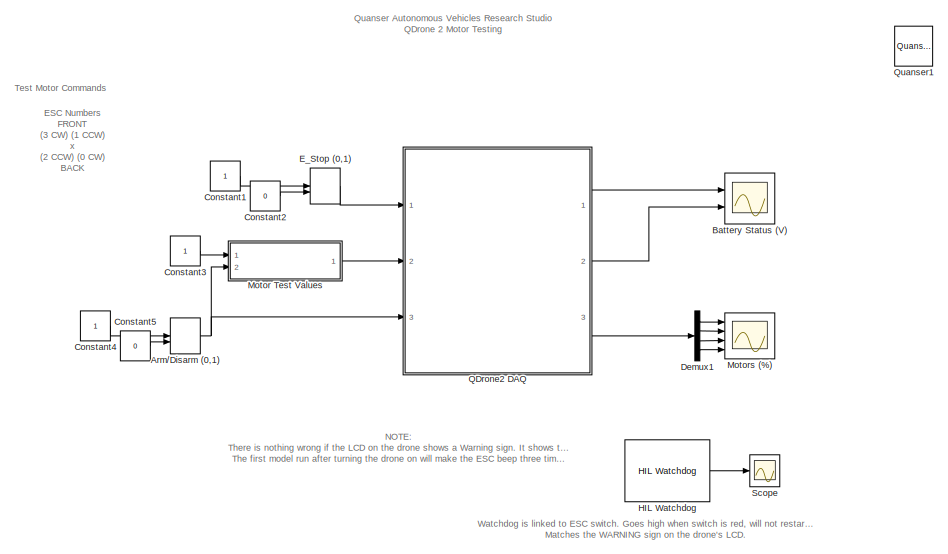
[diagram: root canvas - part 1/2, right side, full height]
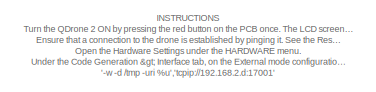
[diagram: root canvas - part 2/2, top left region]
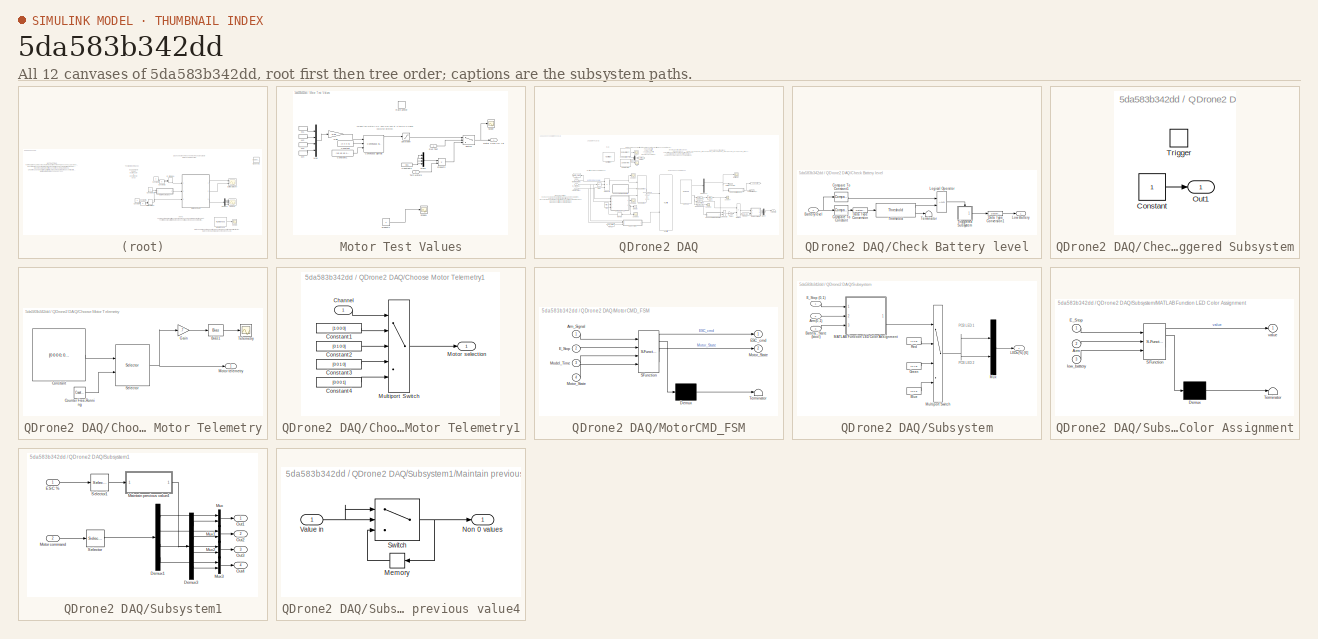
[diagram: thumbnail index - all 12 canvases of the model, root first then tree order]
MODEL slx_5da583b342dd
KIND model
CONFIG AbsTol = auto
CONFIG EnableMultiTasking = on
CONFIG FixedStep = 0.002
CONFIG MaxStep = auto
CONFIG MinStep = auto
CONFIG RelTol = 1e-3
CONFIG SampleTimeConstraint = Unconstrained
CONFIG SolverName = ode2
CONFIG StartTime = 0.0
CONFIG StopTime = inf
BLOCK [ManualSwitch] Arm//Disarm (0,1)
  InitFcn = set_param(gcb,'sw','0')
BLOCK [Scope] Battery Status (V)
  Floating = off
  NumInputPorts = 2
  Ports = [2]
  ScopeSpecificationString = Simulink.scopes.TimeScopeBlockCfg('CurrentConfiguration', extmgr.ConfigurationSet(extmgr.Configuration('Core','General UI',true),extmgr.Configuration('Core','Source UI',true),extmgr.Configuration('Sources','WiredSimulink',true),extmgr.Configuration('Visuals','Time Domain',true,'SerializedDisplays',{struct('MinYLimReal','-1.00000','MaxYLimReal','1.00000','YLabelReal','','MinYLimMag','0.00000','MaxY...<+2019ch>
BLOCK [Constant] Constant1
BLOCK [Constant] Constant2
  Value = 0
BLOCK [Constant] Constant3
BLOCK [Constant] Constant4
BLOCK [Constant] Constant5
  Value = 0
BLOCK [Demux] Demux1
  Ports = [1, 4]
BLOCK [ManualSwitch] E_Stop (0,1)
  CurrentSetting = 0
BLOCK [Reference] HIL Watchdog  REF=quarc_library/Data Acquisition/Generic/Watchdog/HIL Watchdog
  AttributesFormatString = (%<object_name>)
  Ports = [0, 1]
  SourceBlock = quarc_library/Data Acquisition/Generic/Watchdog/HIL Watchdog
  SourceProductName = QUARC Targets
  SourceType = HIL Watchdog
  UserDataPersistent = on
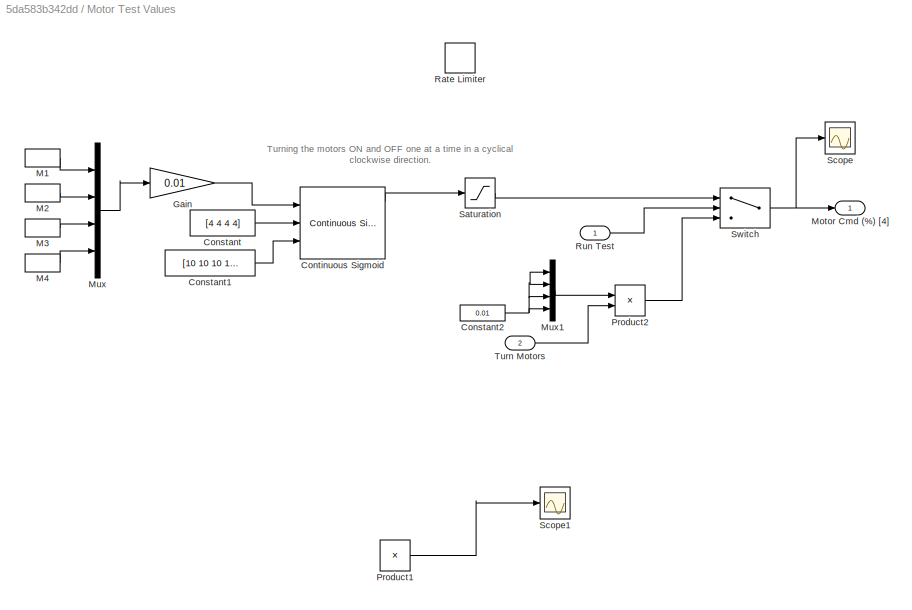
BLOCK [SubSystem] Motor Test Values
  NameLocation = top
  Ports = [2, 1]
BLOCK [Constant] Motor Test Values/Constant
  Value = [4 4 4 4]
BLOCK [Constant] Motor Test Values/Constant1
  Value = [10 10 10 10]
BLOCK [Constant] Motor Test Values/Constant2
  Value = 0.01
BLOCK [Reference] Motor Test Values/Continuous Sigmoid  REF=quarc_library/Sources/Sigmoids/Continuous Sigmoid
  Ports = [3, 4]
  SourceBlock = quarc_library/Sources/Sigmoids/Continuous Sigmoid
  SourceProductName = QUARC Targets
  SourceType = Continuous Sigmoid
BLOCK [Gain] Motor Test Values/Gain
  Gain = 0.01
BLOCK [DiscretePulseGenerator] Motor Test Values/M1
  Period = 8
  Ports = [0, 1]
  PulseType = Time based
  PulseWidth = 12.5
BLOCK [DiscretePulseGenerator] Motor Test Values/M2
  Period = 8
  PhaseDelay = 6
  Ports = [0, 1]
  PulseType = Time based
  PulseWidth = 12.5
BLOCK [DiscretePulseGenerator] Motor Test Values/M3
  Period = 8
  PhaseDelay = 2
  Ports = [0, 1]
  PulseType = Time based
  PulseWidth = 12.5
BLOCK [DiscretePulseGenerator] Motor Test Values/M4
  Period = 8
  PhaseDelay = 4
  Ports = [0, 1]
  PulseType = Time based
  PulseWidth = 12.5
BLOCK [Outport] Motor Test Values/Motor Cmd (%) [4]
  VectorParamsAs1DForOutWhenUnconnected = off
BLOCK [Mux] Motor Test Values/Mux
  DisplayOption = bar
  Ports = [4, 1]
BLOCK [Mux] Motor Test Values/Mux1
  DisplayOption = bar
  Ports = [4, 1]
BLOCK [Product] Motor Test Values/Product1
  Commented = on
  Ports = [2, 1]
BLOCK [Product] Motor Test Values/Product2
  Ports = [2, 1]
BLOCK [RateLimiter] Motor Test Values/Rate Limiter
  Commented = on
  FallingSlewLimit = -0.1
  RisingSlewLimit = 0.1
  SampleTimeMode = inherited
BLOCK [Inport] Motor Test Values/Run Test
BLOCK [Saturate] Motor Test Values/Saturation
  LowerLimit = 0
  UpperLimit = 0.1
BLOCK [Scope] Motor Test Values/Scope
  Floating = off
  NumInputPorts = 1
  Ports = [1]
  ScopeSpecificationString = Simulink.scopes.TimeScopeBlockCfg('CurrentConfiguration', extmgr.ConfigurationSet(extmgr.Configuration('Core','General UI',true),extmgr.Configuration('Core','Source UI',true),extmgr.Configuration('Sources','WiredSimulink',true,'DataLoggingVariableName','ScopeData1'),extmgr.Configuration('Visuals','Time Domain',true,'SerializedDisplays',{struct('MinYLimReal','-0.00125','MaxYLimReal','0.01125','YLab...<+1429ch>
BLOCK [Scope] Motor Test Values/Scope1
  Commented = on
  Floating = off
  NumInputPorts = 1
  Ports = [1]
  ScopeSpecificationString = Simulink.scopes.TimeScopeBlockCfg('CurrentConfiguration', extmgr.ConfigurationSet(extmgr.Configuration('Core','General UI',true),extmgr.Configuration('Core','Source UI',true),extmgr.Configuration('Sources','WiredSimulink',true,'DataLoggingVariableName','ScopeData2'),extmgr.Configuration('Visuals','Time Domain',true,'SerializedDisplays',{struct('MinYLimReal','-0.0025','MaxYLimReal','0.0225','YLabel...<+1454ch>
BLOCK [Switch] Motor Test Values/Switch
  Criteria = u2 > Threshold
  InputSameDT = off
  SaturateOnIntegerOverflow = off
BLOCK [Inport] Motor Test Values/Turn Motors
  Port = 2
BLOCK [Scope] Motors (%)
  Floating = off
  NumInputPorts = 4
  Ports = [4]
  ScopeSpecificationString = Simulink.scopes.TimeScopeBlockCfg('CurrentConfiguration', extmgr.ConfigurationSet(extmgr.Configuration('Core','General UI',true),extmgr.Configuration('Core','Source UI',true),extmgr.Configuration('Sources','WiredSimulink',true,'DataLoggingVariableName','ScopeData2'),extmgr.Configuration('Visuals','Time Domain',true,'SerializedDisplays',{struct('MinYLimReal','-0.01681','MaxYLimReal','0.1513','YLabe...<+3932ch>
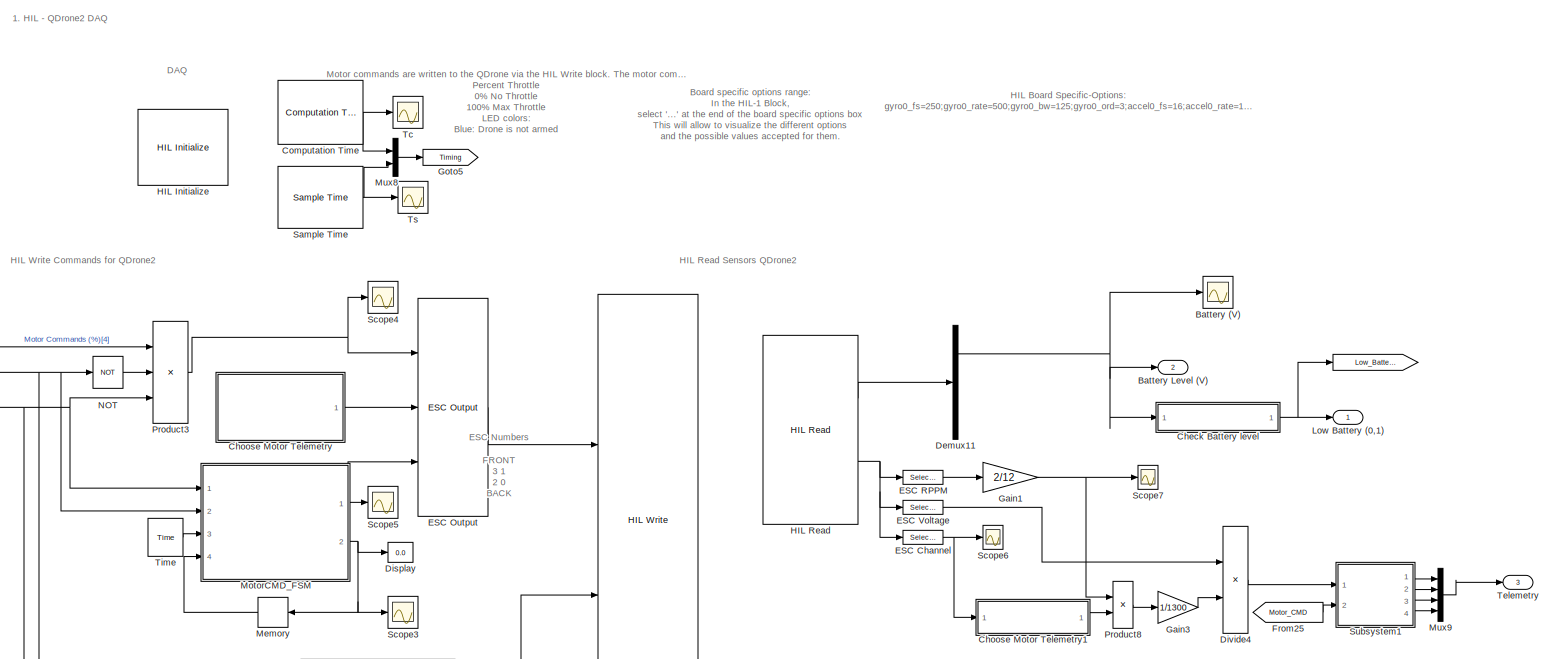
[diagram: QDrone2 DAQ - part 1/2, most of the canvas]
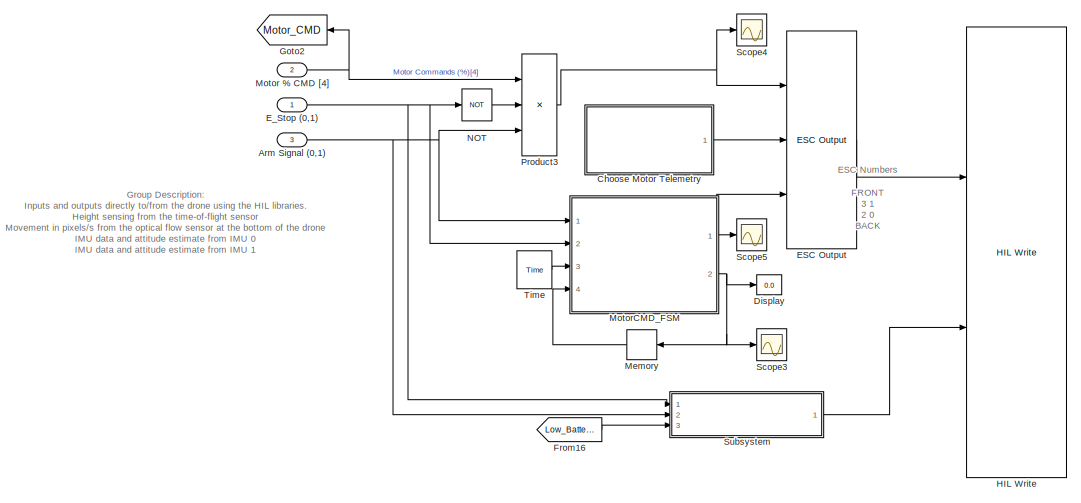
[diagram: QDrone2 DAQ - part 2/2, bottom left region]
BLOCK [SubSystem] QDrone2 DAQ
  Ports = [3, 3]
BLOCK [Goto] QDrone2 DAQ/ 
  GotoTag = Low_Battery
BLOCK [Inport] QDrone2 DAQ/Arm Signal (0,1)
  Port = 3
BLOCK [Scope] QDrone2 DAQ/Battery (V)
  Floating = off
  NumInputPorts = 1
  Ports = [1]
  ScopeSpecificationString = Simulink.scopes.TimeScopeBlockCfg('CurrentConfiguration', extmgr.ConfigurationSet(extmgr.Configuration('Core','General UI',true),extmgr.Configuration('Core','Source UI',true),extmgr.Configuration('Sources','WiredSimulink',true,'DataLoggingVariableName','ScopeData1'),extmgr.Configuration('Visuals','Time Domain',true,'SerializedDisplays',{struct('MinYLimReal','13.04642','MaxYLimReal','18.70722','YLa...<+1438ch>
BLOCK [Outport] QDrone2 DAQ/Battery Level (V)
  Port = 2
BLOCK [SubSystem] QDrone2 DAQ/Check Battery level
  Ports = [1, 1]
BLOCK [Inport] QDrone2 DAQ/Check Battery level/Battery level
BLOCK [Reference] QDrone2 DAQ/Check Battery level/Compare To Constant  REF=simulink/Logic and Bit
Operations/Compare
To Constant
  Ports = [1, 1]
  SourceBlock = simulink/Logic and Bit\nOperations/Compare\nTo Constant
  SourceType = Compare To Constant
BLOCK [Reference] QDrone2 DAQ/Check Battery level/Compare To Constant1  REF=simulink/Logic and Bit
Operations/Compare
To Constant
  Ports = [1, 1]
  SourceBlock = simulink/Logic and Bit\nOperations/Compare\nTo Constant
  SourceType = Compare To Constant
BLOCK [DataTypeConversion] QDrone2 DAQ/Check Battery level/Data Type Conversion
  RndMeth = Floor
  SaturateOnIntegerOverflow = off
BLOCK [DataTypeConversion] QDrone2 DAQ/Check Battery level/Data Type Conversion1
  RndMeth = Floor
  SaturateOnIntegerOverflow = off
BLOCK [Logic] QDrone2 DAQ/Check Battery level/Logical Operator
  AllPortsSameDT = off
  OutDataTypeStr = boolean
  Ports = [2, 1]
BLOCK [Outport] QDrone2 DAQ/Check Battery level/Low Battery
  VectorParamsAs1DForOutWhenUnconnected = off
BLOCK [Terminator] QDrone2 DAQ/Check Battery level/Terminator
BLOCK [Reference] QDrone2 DAQ/Check Battery level/Threshold  REF=quarc_library/Discontinuities/Threshold
  Ports = [1, 2]
  SourceBlock = quarc_library/Discontinuities/Threshold
  SourceProductName = QUARC Targets
  SourceType = Threshold
BLOCK [SubSystem] QDrone2 DAQ/Check Battery level/Triggered Subsystem
  Ports = [0, 1, 0, 1]
  TreatAsAtomicUnit = on
BLOCK [Constant] QDrone2 DAQ/Check Battery level/Triggered Subsystem/Constant
BLOCK [Outport] QDrone2 DAQ/Check Battery level/Triggered Subsystem/Out1
  InitialOutput = [0]
BLOCK [TriggerPort] QDrone2 DAQ/Check Battery level/Triggered Subsystem/Trigger
  Ports = []
  StatesWhenEnabling = held
  VariantControl = (inherit)
BLOCK [SubSystem] QDrone2 DAQ/Choose Motor Telemetry
  Ports = [0, 1]
BLOCK [Bias] QDrone2 DAQ/Choose Motor Telemetry/Bias1
  Bias = 0:3
  SaturateOnIntegerOverflow = off
BLOCK [Constant] QDrone2 DAQ/Choose Motor Telemetry/Constant
  Value = [0 0 0 0; 0 0 0 1; 0 0 0 0; 0 0 1 0; 0 0 0 0; 0 1 0 0; 0 0 0 0; 1 0 0 0]
BLOCK [Reference] QDrone2 DAQ/Choose Motor Telemetry/Counter Free-Running  REF=simulink/Sources/Counter
Free-Running
  Ports = [0, 1]
  SourceBlock = simulink/Sources/Counter\nFree-Running
  SourceType = Counter Free-Running
BLOCK [Gain] QDrone2 DAQ/Choose Motor Telemetry/Gain
  Gain = .7
BLOCK [Outport] QDrone2 DAQ/Choose Motor Telemetry/Motor telemetry
BLOCK [Selector] QDrone2 DAQ/Choose Motor Telemetry/Selector
  IndexMode = Zero-based
  IndexOptions = Index vector (port),Select all
  Indices = [1 3],1
  InputPortWidth = 3
  NumberOfDimensions = 2
  OutputSizes = 1,1
  Ports = [2, 1]
BLOCK [Scope] QDrone2 DAQ/Choose Motor Telemetry/Telemetry
  Floating = off
  NumInputPorts = 1
  Ports = [1]
  ScopeSpecificationString = Simulink.scopes.TimeScopeBlockCfg('CurrentConfiguration', extmgr.ConfigurationSet(extmgr.Configuration('Core','General UI',true),extmgr.Configuration('Core','Source UI',true),extmgr.Configuration('Sources','WiredSimulink',true,'DataLoggingVariableName','ScopeData2'),extmgr.Configuration('Visuals','Time Domain',true,'SerializedDisplays',{struct('MinYLimReal','-0.4625','MaxYLimReal','4.1625','YLabel...<+1629ch>
BLOCK [SubSystem] QDrone2 DAQ/Choose Motor Telemetry1
  Ports = [1, 1]
BLOCK [Inport] QDrone2 DAQ/Choose Motor Telemetry1/Channel
BLOCK [Constant] QDrone2 DAQ/Choose Motor Telemetry1/Constant1
  Value = [1 0 0 0]
BLOCK [Constant] QDrone2 DAQ/Choose Motor Telemetry1/Constant2
  Value = [0 1 0 0]
BLOCK [Constant] QDrone2 DAQ/Choose Motor Telemetry1/Constant3
  Value = [0 0 1 0]
BLOCK [Constant] QDrone2 DAQ/Choose Motor Telemetry1/Constant4
  Value = [0 0 0 1]
BLOCK [Outport] QDrone2 DAQ/Choose Motor Telemetry1/Motor selection
BLOCK [MultiPortSwitch] QDrone2 DAQ/Choose Motor Telemetry1/Multiport Switch
  DataPortOrder = Zero-based contiguous
  InputSameDT = off
  Inputs = 4
  Ports = [5, 1]
  SaturateOnIntegerOverflow = off
  zeroidx = on
BLOCK [Reference] QDrone2 DAQ/Computation Time  REF=quarc_library/Sources/Time/Computation Time
  Ports = [0, 1]
  SourceBlock = quarc_library/Sources/Time/Computation Time
  SourceProductName = QUARC Targets
  SourceType = Computation Time
BLOCK [Demux] QDrone2 DAQ/Demux11
  Outputs = 3
  Ports = [1, 3]
BLOCK [Display] QDrone2 DAQ/Display
  Decimation = 1
  Ports = [1]
BLOCK [Product] QDrone2 DAQ/Divide4
  Inputs = /*
  Ports = [2, 1]
BLOCK [Selector] QDrone2 DAQ/ESC Channel
  IndexOptions = Index vector (dialog)
  Indices = [22]
  InputPortWidth = 22
  OutputSizes = 1
  Ports = [1, 1]
BLOCK [Reference] QDrone2 DAQ/ESC Output  REF=quarc_library/Data Acquisition/Generic/Transformations/ESC Output
  AttributesFormatString = %<protocol>
  Ports = [3, 1]
  SourceBlock = quarc_library/Data Acquisition/Generic/Transformations/ESC Output
  SourceProductName = QUARC Targets
  SourceType = ESC Output
  UserDataPersistent = on
BLOCK [Selector] QDrone2 DAQ/ESC RPPM
  IndexOptions = Index vector (dialog)
  Indices = [20]
  InputPortWidth = 22
  OutputSizes = 1
  Ports = [1, 1]
BLOCK [Selector] QDrone2 DAQ/ESC Voltage
  IndexOptions = Index vector (dialog)
  Indices = [21]
  InputPortWidth = 22
  OutputSizes = 1
  Ports = [1, 1]
BLOCK [Inport] QDrone2 DAQ/E_Stop (0,1)
BLOCK [From] QDrone2 DAQ/From16
  GotoTag = Low_Battery
BLOCK [From] QDrone2 DAQ/From25
  GotoTag = Motor_CMD
BLOCK [Gain] QDrone2 DAQ/Gain1
  Gain = 2/12
BLOCK [Gain] QDrone2 DAQ/Gain3
  Gain = 1/1300
BLOCK [Goto] QDrone2 DAQ/Goto2
  GotoTag = Motor_CMD
  NameLocation = top
BLOCK [Goto] QDrone2 DAQ/Goto5
  GotoTag = Timing
BLOCK [Reference] QDrone2 DAQ/HIL Initialize  REF=quarc_library/Data Acquisition/Generic/Configuration/HIL Initialize
  AttributesFormatString = %<object_name> (%<board_type>-%<board_number>)
  Ports = []
  SourceBlock = quarc_library/Data Acquisition/Generic/Configuration/HIL Initialize
  SourceProductName = QUARC Targets
  SourceType = HIL Initialize
  UserDataPersistent = on
BLOCK [Reference] QDrone2 DAQ/HIL Read  REF=quarc_library/Data Acquisition/Generic/Immediate I//O/HIL Read
  AttributesFormatString = (%<object_name>)
  Ports = [0, 2]
  SourceBlock = quarc_library/Data Acquisition/Generic/Immediate I//O/HIL Read
  SourceProductName = QUARC Targets
  SourceType = HIL Read
  UserDataPersistent = on
BLOCK [Reference] QDrone2 DAQ/HIL Write  REF=quarc_library/Data Acquisition/Generic/Immediate I//O/HIL Write
  AttributesFormatString = (%<object_name>)
  Ports = [2]
  SourceBlock = quarc_library/Data Acquisition/Generic/Immediate I//O/HIL Write
  SourceProductName = QUARC Targets
  SourceType = HIL Write
  UserDataPersistent = on
BLOCK [Outport] QDrone2 DAQ/Low Battery (0,1)
BLOCK [Memory] QDrone2 DAQ/Memory
  NameLocation = top
BLOCK [Inport] QDrone2 DAQ/Motor % CMD [4]
  Port = 2
BLOCK [SubSystem] QDrone2 DAQ/MotorCMD_FSM
  ErrorFcn = Stateflow.Translate.translate
  PermitHierarchicalResolution = ExplicitOnly
  Ports = [4, 2]
  SFBlockType = MATLAB Function
  TreatAsAtomicUnit = on
BLOCK [Demux] QDrone2 DAQ/MotorCMD_FSM/ Demux 
  Outputs = 1
  Ports = [1, 1]
BLOCK [S-Function] QDrone2 DAQ/MotorCMD_FSM/ SFunction 
  EnableBusSupport = on
  FunctionName = sf_sfun
  PortCounts = [4 3]
  Ports = [4, 3]
  SFcnIsStateOwnerBlock = off
  SFunctionDeploymentMode = off
  Tag = Stateflow S-Function 4
BLOCK [Terminator] QDrone2 DAQ/MotorCMD_FSM/ Terminator 
BLOCK [Inport] QDrone2 DAQ/MotorCMD_FSM/Arm_Signal
BLOCK [Outport] QDrone2 DAQ/MotorCMD_FSM/ESC_cmd
BLOCK [Inport] QDrone2 DAQ/MotorCMD_FSM/E_Stop
  Port = 2
BLOCK [Inport] QDrone2 DAQ/MotorCMD_FSM/Model_Time
  Port = 3
BLOCK [Outport] QDrone2 DAQ/MotorCMD_FSM/Motor_State
  Port = 2
BLOCK [Inport] QDrone2 DAQ/MotorCMD_FSM/Motor_State 
  Port = 4
BLOCK [Mux] QDrone2 DAQ/Mux8
  DisplayOption = bar
  Inputs = 2
  Ports = [2, 1]
BLOCK [Mux] QDrone2 DAQ/Mux9
  DisplayOption = bar
  Ports = [4, 1]
BLOCK [Logic] QDrone2 DAQ/NOT
  AllPortsSameDT = off
  IconShape = distinctive
  Operator = NOT
  OutDataTypeStr = boolean
  Ports = [1, 1]
BLOCK [Product] QDrone2 DAQ/Product3
  Inputs = 3
  Ports = [3, 1]
BLOCK [Product] QDrone2 DAQ/Product8
  Ports = [2, 1]
BLOCK [Reference] QDrone2 DAQ/Sample Time  REF=quarc_library/Sources/Time/Sample Time
  Ports = [0, 1]
  Priority = -99
  SourceBlock = quarc_library/Sources/Time/Sample Time
  SourceProductName = QUARC Targets
  SourceType = Sample Time
BLOCK [Scope] QDrone2 DAQ/Scope3
  Floating = off
  NumInputPorts = 1
  Ports = [1]
  ScopeSpecificationString = Simulink.scopes.TimeScopeBlockCfg('CurrentConfiguration', extmgr.ConfigurationSet(extmgr.Configuration('Core','General UI',true),extmgr.Configuration('Core','Source UI',true),extmgr.Configuration('Sources','WiredSimulink',true,'DataLoggingVariableName','ScopeData1'),extmgr.Configuration('Visuals','Time Domain',true,'SerializedDisplays',{struct('MinYLimReal','-0.25','MaxYLimReal','2.25','YLabelReal...<+1420ch>
BLOCK [Scope] QDrone2 DAQ/Scope4
  Floating = off
  NumInputPorts = 1
  Ports = [1]
  ScopeSpecificationString = Simulink.scopes.TimeScopeBlockCfg('CurrentConfiguration', extmgr.ConfigurationSet(extmgr.Configuration('Core','General UI',true),extmgr.Configuration('Core','Source UI',true),extmgr.Configuration('Sources','WiredSimulink',true,'DataLoggingVariableName','ScopeData1'),extmgr.Configuration('Visuals','Time Domain',true,'SerializedDisplays',{struct('MinYLimReal','-0.005','MaxYLimReal','0.045','YLabelRe...<+1510ch>
BLOCK [Scope] QDrone2 DAQ/Scope5
  Floating = off
  NumInputPorts = 1
  Ports = [1]
  ScopeSpecificationString = Simulink.scopes.TimeScopeBlockCfg('CurrentConfiguration', extmgr.ConfigurationSet(extmgr.Configuration('Core','General UI',true),extmgr.Configuration('Core','Source UI',true),extmgr.Configuration('Sources','WiredSimulink',true,'DataLoggingVariableName','ScopeData2'),extmgr.Configuration('Visuals','Time Domain',true,'SerializedDisplays',{struct('MinYLimReal','-2.625','MaxYLimReal','23.625','YLabelR...<+1512ch>
BLOCK [Scope] QDrone2 DAQ/Scope6
  Floating = off
  NumInputPorts = 1
  Ports = [1]
  ScopeSpecificationString = Simulink.scopes.TimeScopeBlockCfg('CurrentConfiguration', extmgr.ConfigurationSet(extmgr.Configuration('Core','General UI',true),extmgr.Configuration('Core','Source UI',true),extmgr.Configuration('Sources','WiredSimulink',true,'DataLoggingVariableName','ScopeData2'),extmgr.Configuration('Visuals','Time Domain',true,'SerializedDisplays',{struct('MinYLimReal','1.875','MaxYLimReal','3.125','YLabelRea...<+1428ch>
BLOCK [Scope] QDrone2 DAQ/Scope7
  Floating = off
  NumInputPorts = 1
  Ports = [1]
  ScopeSpecificationString = Simulink.scopes.TimeScopeBlockCfg('CurrentConfiguration', extmgr.ConfigurationSet(extmgr.Configuration('Core','General UI',true),extmgr.Configuration('Core','Source UI',true),extmgr.Configuration('Sources','WiredSimulink',true,'DataLoggingVariableName','ScopeData3'),extmgr.Configuration('Visuals','Time Domain',true,'SerializedDisplays',{struct('MinYLimReal','-209.07448','MaxYLimReal','2058.33985',...<+1458ch>
BLOCK [SubSystem] QDrone2 DAQ/Subsystem
  Ports = [3, 1]
BLOCK [Inport] QDrone2 DAQ/Subsystem/Arm(0,1) 
  Port = 2
BLOCK [Inport] QDrone2 DAQ/Subsystem/Battery_State (bool)
  Port = 3
BLOCK [Constant] QDrone2 DAQ/Subsystem/Blue
  Value = [0 0 1]
BLOCK [Inport] QDrone2 DAQ/Subsystem/E_Stop (0,1)
BLOCK [Constant] QDrone2 DAQ/Subsystem/Green
  Value = [0 1 0]
BLOCK [Outport] QDrone2 DAQ/Subsystem/LEDs(%) [6]
BLOCK [SubSystem] QDrone2 DAQ/Subsystem/MATLAB Function LED Color Assignment
  ErrorFcn = Stateflow.Translate.translate
  PermitHierarchicalResolution = ExplicitOnly
  Ports = [3, 1]
  SFBlockType = MATLAB Function
  TreatAsAtomicUnit = on
BLOCK [Demux] QDrone2 DAQ/Subsystem/MATLAB Function LED Color Assignment/ Demux 
  Outputs = 1
  Ports = [1, 1]
BLOCK [S-Function] QDrone2 DAQ/Subsystem/MATLAB Function LED Color Assignment/ SFunction 
  EnableBusSupport = on
  FunctionName = sf_sfun
  PortCounts = [3 2]
  Ports = [3, 2]
  SFcnIsStateOwnerBlock = off
  SFunctionDeploymentMode = off
  Tag = Stateflow S-Function 2
BLOCK [Terminator] QDrone2 DAQ/Subsystem/MATLAB Function LED Color Assignment/ Terminator 
BLOCK [Inport] QDrone2 DAQ/Subsystem/MATLAB Function LED Color Assignment/Arm
  Port = 2
BLOCK [Inport] QDrone2 DAQ/Subsystem/MATLAB Function LED Color Assignment/E_Stop
BLOCK [Inport] QDrone2 DAQ/Subsystem/MATLAB Function LED Color Assignment/low_battery
  Port = 3
BLOCK [Outport] QDrone2 DAQ/Subsystem/MATLAB Function LED Color Assignment/value
  VectorParamsAs1DForOutWhenUnconnected = off
BLOCK [MultiPortSwitch] QDrone2 DAQ/Subsystem/Multiport Switch
  InputSameDT = off
  Ports = [4, 1]
  SaturateOnIntegerOverflow = off
BLOCK [Mux] QDrone2 DAQ/Subsystem/Mux
  DisplayOption = bar
  Inputs = 2
  Ports = [2, 1]
BLOCK [Constant] QDrone2 DAQ/Subsystem/Red
  Value = [1 0 0]
BLOCK [SubSystem] QDrone2 DAQ/Subsystem1
  Ports = [2, 4]
BLOCK [Demux] QDrone2 DAQ/Subsystem1/Demux1
  Ports = [1, 4]
BLOCK [Demux] QDrone2 DAQ/Subsystem1/Demux3
  Ports = [1, 4]
BLOCK [Inport] QDrone2 DAQ/Subsystem1/ESC %
BLOCK [SubSystem] QDrone2 DAQ/Subsystem1/Maintain previous value4
  Ports = [1, 1]
BLOCK [Memory] QDrone2 DAQ/Subsystem1/Maintain previous value4/Memory
BLOCK [Outport] QDrone2 DAQ/Subsystem1/Maintain previous value4/Non 0 values
BLOCK [Switch] QDrone2 DAQ/Subsystem1/Maintain previous value4/Switch
  Criteria = u2 ~= 0
  InputSameDT = off
  SaturateOnIntegerOverflow = off
BLOCK [Inport] QDrone2 DAQ/Subsystem1/Maintain previous value4/Value in
BLOCK [Inport] QDrone2 DAQ/Subsystem1/Motor command
  Port = 2
BLOCK [Mux] QDrone2 DAQ/Subsystem1/Mux
  DisplayOption = bar
  Inputs = 2
  Ports = [2, 1]
BLOCK [Mux] QDrone2 DAQ/Subsystem1/Mux1
  DisplayOption = bar
  Inputs = 2
  Ports = [2, 1]
BLOCK [Mux] QDrone2 DAQ/Subsystem1/Mux2
  DisplayOption = bar
  Inputs = 2
  Ports = [2, 1]
BLOCK [Mux] QDrone2 DAQ/Subsystem1/Mux3
  DisplayOption = bar
  Inputs = 2
  Ports = [2, 1]
BLOCK [Outport] QDrone2 DAQ/Subsystem1/Out1
BLOCK [Outport] QDrone2 DAQ/Subsystem1/Out2
  Port = 2
BLOCK [Outport] QDrone2 DAQ/Subsystem1/Out3
  Port = 3
BLOCK [Outport] QDrone2 DAQ/Subsystem1/Out4
  Port = 4
BLOCK [Selector] QDrone2 DAQ/Subsystem1/Selector
  IndexOptions = Index vector (dialog)
  Indices = [4 3 2 1]
  InputPortWidth = 4
  OutputSizes = 1
  Ports = [1, 1]
BLOCK [Selector] QDrone2 DAQ/Subsystem1/Selector1
  IndexOptions = Index vector (dialog)
  Indices = [4 3 2 1]
  InputPortWidth = 4
  OutputSizes = 1
  Ports = [1, 1]
BLOCK [Scope] QDrone2 DAQ/Tc
  Floating = off
  NumInputPorts = 1
  Ports = [1]
  ScopeSpecificationString = Simulink.scopes.TimeScopeBlockCfg('CurrentConfiguration', extmgr.ConfigurationSet(extmgr.Configuration('Core','General UI',true),extmgr.Configuration('Core','Source UI',true),extmgr.Configuration('Sources','WiredSimulink',true,'DataLoggingVariableName','ScopeData1','DataLoggingLimitDataPoints',true,'DataLoggingSaveFormat','Array','DataLoggingDecimation','1','DataLoggingDecimateData',true),extmgr.C...<+1509ch>
BLOCK [Outport] QDrone2 DAQ/Telemetry
  Port = 3
BLOCK [Reference] QDrone2 DAQ/Time  REF=quarc_library/Sources/Time/Time
  Ports = [0, 1]
  SourceBlock = quarc_library/Sources/Time/Time
  SourceProductName = QUARC Targets
  SourceType = Time
BLOCK [Scope] QDrone2 DAQ/Ts
  Floating = off
  NumInputPorts = 1
  Ports = [1]
  ScopeSpecificationString = Simulink.scopes.TimeScopeBlockCfg('CurrentConfiguration', extmgr.ConfigurationSet(extmgr.Configuration('Core','General UI',true),extmgr.Configuration('Core','Source UI',true),extmgr.Configuration('Sources','WiredSimulink',true,'DataLoggingVariableName','ScopeData2','DataLoggingLimitDataPoints',true,'DataLoggingSaveFormat','Array','DataLoggingDecimation','1','DataLoggingDecimateData',true),extmgr.C...<+1569ch>
BLOCK [Reference] Quanser1  REF=quarc_library/Logos/Quanser
  Ports = []
  SourceBlock = quarc_library/Logos/Quanser
  SourceProductName = QUARC Targets
  SourceType = Powered by Quanser
BLOCK [Scope] Scope
  Floating = off
  NumInputPorts = 1
  Ports = [1]
  ScopeSpecificationString = Simulink.scopes.TimeScopeBlockCfg('CurrentConfiguration', extmgr.ConfigurationSet(extmgr.Configuration('Core','General UI',true),extmgr.Configuration('Core','Source UI',true),extmgr.Configuration('Sources','WiredSimulink',true,'DataLoggingVariableName','ScopeData1'),extmgr.Configuration('Visuals','Time Domain',true,'SerializedDisplays',{struct('MinYLimReal','-.2','MaxYLimReal','1.2','YLabelReal','...<+1356ch>
ANNOTATION (root): INSTRUCTIONS Turn the QDrone 2 ON by pressing the red button on the PCB once. The LCD screen should turn on. Ensure that a connection to the drone is established by pinging it. See the Research Studio Setup documentation (step 8 - Vehicle Comms ). Open the Hardware Settings under the HARDWARE menu. Under the Code Generation > Interface tab, on the External mode configuration, enter the following M...<+1540ch>
ANNOTATION (root): ESC Numbers FRONT (3 CW) (1 CCW) x (2 CCW) (0 CW) BACK
ANNOTATION (root): NOTE: There is nothing wrong if the LCD on the drone shows a Warning sign . It shows that the motors were disabled through hardware (Watchdog timeout). When starting a model while the ESC switch is green, it will dissapear. The first model run after turning the drone on will make the ESC beep three times on startup. Any subsequent model ran will beep 5 times consecutively. It is normal behaviour.
ANNOTATION (root): Watchdog is linked to ESC switch. Goes high when switch is red, will not restart until model is restarted and ESC switch is green. Matches the WARNING sign on the drone's LCD.
ANNOTATION (root): Quanser Autonomous Vehicles Research Studio QDrone 2 Motor Testing
ANNOTATION (root): Test Motor Commands
ANNOTATION Motor Test Values: Turning the motors ON and OFF one at a time in a cyclical clockwise direction.
ANNOTATION QDrone2 DAQ: 1. HIL - QDrone2 DAQ
ANNOTATION QDrone2 DAQ: Board specific options range: In the HIL-1 Block, select '...' at the end of the board specific options box This will allow to visualize the different options and the possible values accepted for them.
ANNOTATION QDrone2 DAQ: ESC Numbers FRONT 3 1 2 0 BACK
ANNOTATION QDrone2 DAQ: Group Description: Inputs and outputs directly to/from the drone using the HIL libraries. Height sensing from the time-of-flight sensor Movement in pixels/s from the optical flow sensor at the bottom of the drone IMU data and attitude estimate from IMU 0 IMU data and attitude estimate from IMU 1 Average of both IMU outputs Average body frame attitude from IMU data Blackbox saving all relevant valu...<+2ch>
ANNOTATION QDrone2 DAQ: Motor commands are written to the QDrone via the HIL Write block. The motor command inputs are mapped for a DShot1200 protocol as follows: Percent Throttle 0% No Throttle 100% Max Throttle LED colors: Blue: Drone is not armed Green: Drone is armed Red: Low battery or emergency stop triggered
ANNOTATION QDrone2 DAQ: HIL Board Specific-Options: gyro0_fs=250;gyro0_rate=500;gyro0_bw=125;gyro0_ord=3;accel0_fs=16;accel0_rate=1000;accel0_bw=400;accel0_ord=3;temp0_bw=4000;gyro1_fs=250;gyro1_rate=500;gyro1_bw=125;gyro1_ord=3;accel1_fs=16;accel1_rate=1000;accel1_bw=400;accel1_ord=3;temp1_bw=4000;enc0_dir=0;enc1_dir=0;pwm03_dshot=1;opt_rate=121;
ANNOTATION QDrone2 DAQ: DAQ
ANNOTATION QDrone2 DAQ: HIL Read Sensors QDrone2
ANNOTATION QDrone2 DAQ: HIL Write Commands for QDrone2
ANNOTATION QDrone2 DAQ/Subsystem: PCB LED 1
ANNOTATION QDrone2 DAQ/Subsystem: PCB LED 2
NET Arm//Disarm (0,1):1 -> Motor Test Values:2, QDrone2 DAQ:3
LINE Constant1:1 -> E_Stop (0,1):1
LINE Constant2:1 -> E_Stop (0,1):2
LINE Constant3:1 -> Motor Test Values:1
LINE Constant4:1 -> Arm//Disarm (0,1):1
LINE Constant5:1 -> Arm//Disarm (0,1):2
LINE Demux1:1 -> Motors (%):1
LINE Demux1:2 -> Motors (%):2
LINE Demux1:3 -> Motors (%):3
LINE Demux1:4 -> Motors (%):4
LINE E_Stop (0,1):1 -> QDrone2 DAQ:1
LINE HIL Watchdog:1 -> Scope:1
LINE Motor Test Values/Constant1:1 -> Motor Test Values/Continuous Sigmoid:3
NET Motor Test Values/Constant2:1 -> Motor Test Values/Mux1:1, Motor Test Values/Mux1:2, Motor Test Values/Mux1:3, Motor Test Values/Mux1:4
LINE Motor Test Values/Constant:1 -> Motor Test Values/Continuous Sigmoid:2
LINE Motor Test Values/Continuous Sigmoid:1 -> Motor Test Values/Saturation:1
LINE Motor Test Values/Gain:1 -> Motor Test Values/Continuous Sigmoid:1
LINE Motor Test Values/M1:1 -> Motor Test Values/Mux:1
LINE Motor Test Values/M2:1 -> Motor Test Values/Mux:2
LINE Motor Test Values/M3:1 -> Motor Test Values/Mux:3
LINE Motor Test Values/M4:1 -> Motor Test Values/Mux:4
LINE Motor Test Values/Mux1:1 -> Motor Test Values/Product2:1
LINE Motor Test Values/Mux:1 -> Motor Test Values/Gain:1
LINE Motor Test Values/Product1:1 -> Motor Test Values/Scope1:1
LINE Motor Test Values/Product2:1 -> Motor Test Values/Switch:3
LINE Motor Test Values/Run Test:1 -> Motor Test Values/Switch:2
LINE Motor Test Values/Saturation:1 -> Motor Test Values/Switch:1
NET Motor Test Values/Switch:1 -> Motor Test Values/Motor Cmd (%) [4]:1, Motor Test Values/Scope:1
LINE Motor Test Values/Turn Motors:1 -> Motor Test Values/Product2:2
LINE Motor Test Values:1 -> QDrone2 DAQ:2
NET QDrone2 DAQ/Arm Signal (0,1):1 -> QDrone2 DAQ/MotorCMD_FSM:1, QDrone2 DAQ/Product3:3, QDrone2 DAQ/Subsystem:2
NET QDrone2 DAQ/Check Battery level/Battery level:1 -> QDrone2 DAQ/Check Battery level/Compare To Constant1:1, QDrone2 DAQ/Check Battery level/Compare To Constant:1
LINE QDrone2 DAQ/Check Battery level/Compare To Constant1:1 -> QDrone2 DAQ/Check Battery level/Logical Operator:1
LINE QDrone2 DAQ/Check Battery level/Compare To Constant:1 -> QDrone2 DAQ/Check Battery level/Data Type Conversion:1
LINE QDrone2 DAQ/Check Battery level/Data Type Conversion1:1 -> QDrone2 DAQ/Check Battery level/Low Battery:1
LINE QDrone2 DAQ/Check Battery level/Data Type Conversion:1 -> QDrone2 DAQ/Check Battery level/Threshold:1
LINE QDrone2 DAQ/Check Battery level/Logical Operator:1 -> QDrone2 DAQ/Check Battery level/Triggered Subsystem:trigger
LINE QDrone2 DAQ/Check Battery level/Threshold:1 -> QDrone2 DAQ/Check Battery level/Logical Operator:2
LINE QDrone2 DAQ/Check Battery level/Threshold:2 -> QDrone2 DAQ/Check Battery level/Terminator:1
LINE QDrone2 DAQ/Check Battery level/Triggered Subsystem/Constant:1 -> QDrone2 DAQ/Check Battery level/Triggered Subsystem/Out1:1
LINE QDrone2 DAQ/Check Battery level/Triggered Subsystem:1 -> QDrone2 DAQ/Check Battery level/Data Type Conversion1:1
NET QDrone2 DAQ/Check Battery level:1 -> QDrone2 DAQ/ :1, QDrone2 DAQ/Low Battery (0,1):1
LINE QDrone2 DAQ/Choose Motor Telemetry/Bias1:1 -> QDrone2 DAQ/Choose Motor Telemetry/Telemetry:1
LINE QDrone2 DAQ/Choose Motor Telemetry/Constant:1 -> QDrone2 DAQ/Choose Motor Telemetry/Selector:1
LINE QDrone2 DAQ/Choose Motor Telemetry/Counter Free-Running:1 -> QDrone2 DAQ/Choose Motor Telemetry/Selector:2
LINE QDrone2 DAQ/Choose Motor Telemetry/Gain:1 -> QDrone2 DAQ/Choose Motor Telemetry/Bias1:1
NET QDrone2 DAQ/Choose Motor Telemetry/Selector:1 -> QDrone2 DAQ/Choose Motor Telemetry/Gain:1, QDrone2 DAQ/Choose Motor Telemetry/Motor telemetry:1
LINE QDrone2 DAQ/Choose Motor Telemetry1/Channel:1 -> QDrone2 DAQ/Choose Motor Telemetry1/Multiport Switch:1
LINE QDrone2 DAQ/Choose Motor Telemetry1/Constant1:1 -> QDrone2 DAQ/Choose Motor Telemetry1/Multiport Switch:2
LINE QDrone2 DAQ/Choose Motor Telemetry1/Constant2:1 -> QDrone2 DAQ/Choose Motor Telemetry1/Multiport Switch:3
LINE QDrone2 DAQ/Choose Motor Telemetry1/Constant3:1 -> QDrone2 DAQ/Choose Motor Telemetry1/Multiport Switch:4
LINE QDrone2 DAQ/Choose Motor Telemetry1/Constant4:1 -> QDrone2 DAQ/Choose Motor Telemetry1/Multiport Switch:5
LINE QDrone2 DAQ/Choose Motor Telemetry1/Multiport Switch:1 -> QDrone2 DAQ/Choose Motor Telemetry1/Motor selection:1
LINE QDrone2 DAQ/Choose Motor Telemetry1:1 -> QDrone2 DAQ/Product8:2
LINE QDrone2 DAQ/Choose Motor Telemetry:1 -> QDrone2 DAQ/ESC Output:2
NET QDrone2 DAQ/Computation Time:1 -> QDrone2 DAQ/Mux8:1, QDrone2 DAQ/Tc:1
NET QDrone2 DAQ/Demux11:1 -> QDrone2 DAQ/Battery (V):1, QDrone2 DAQ/Battery Level (V):1, QDrone2 DAQ/Check Battery level:1
LINE QDrone2 DAQ/Divide4:1 -> QDrone2 DAQ/Subsystem1:1
NET QDrone2 DAQ/ESC Channel:1 -> QDrone2 DAQ/Choose Motor Telemetry1:1, QDrone2 DAQ/Scope6:1
LINE QDrone2 DAQ/ESC Output:1 -> QDrone2 DAQ/HIL Write:1
LINE QDrone2 DAQ/ESC RPPM:1 -> QDrone2 DAQ/Gain1:1
LINE QDrone2 DAQ/ESC Voltage:1 -> QDrone2 DAQ/Divide4:1
NET QDrone2 DAQ/E_Stop (0,1):1 -> QDrone2 DAQ/MotorCMD_FSM:2, QDrone2 DAQ/NOT:1, QDrone2 DAQ/Subsystem:1
LINE QDrone2 DAQ/From16:1 -> QDrone2 DAQ/Subsystem:3
LINE QDrone2 DAQ/From25:1 -> QDrone2 DAQ/Subsystem1:2
NET QDrone2 DAQ/Gain1:1 -> QDrone2 DAQ/Product8:1, QDrone2 DAQ/Scope7:1
LINE QDrone2 DAQ/Gain3:1 -> QDrone2 DAQ/Divide4:2
LINE QDrone2 DAQ/HIL Read:1 -> QDrone2 DAQ/Demux11:1
NET QDrone2 DAQ/HIL Read:2 -> QDrone2 DAQ/ESC Channel:1, QDrone2 DAQ/ESC RPPM:1, QDrone2 DAQ/ESC Voltage:1
LINE QDrone2 DAQ/Memory:1 -> QDrone2 DAQ/MotorCMD_FSM:4
NET QDrone2 DAQ/Motor % CMD [4]:1 -> QDrone2 DAQ/Goto2:1, QDrone2 DAQ/Product3:1
NET QDrone2 DAQ/MotorCMD_FSM:1 -> QDrone2 DAQ/ESC Output:3, QDrone2 DAQ/Scope5:1
NET QDrone2 DAQ/MotorCMD_FSM:2 -> QDrone2 DAQ/Display:1, QDrone2 DAQ/Memory:1, QDrone2 DAQ/Scope3:1
LINE QDrone2 DAQ/Mux8:1 -> QDrone2 DAQ/Goto5:1
LINE QDrone2 DAQ/Mux9:1 -> QDrone2 DAQ/Telemetry:1
LINE QDrone2 DAQ/NOT:1 -> QDrone2 DAQ/Product3:2
NET QDrone2 DAQ/Product3:1 -> QDrone2 DAQ/ESC Output:1, QDrone2 DAQ/Scope4:1
LINE QDrone2 DAQ/Product8:1 -> QDrone2 DAQ/Gain3:1
NET QDrone2 DAQ/Sample Time:1 -> QDrone2 DAQ/Mux8:2, QDrone2 DAQ/Ts:1
LINE QDrone2 DAQ/Subsystem/Arm(0,1) :1 -> QDrone2 DAQ/Subsystem/MATLAB Function LED Color Assignment:2
LINE QDrone2 DAQ/Subsystem/Battery_State (bool):1 -> QDrone2 DAQ/Subsystem/MATLAB Function LED Color Assignment:3
LINE QDrone2 DAQ/Subsystem/Blue:1 -> QDrone2 DAQ/Subsystem/Multiport Switch:4
LINE QDrone2 DAQ/Subsystem/E_Stop (0,1):1 -> QDrone2 DAQ/Subsystem/MATLAB Function LED Color Assignment:1
LINE QDrone2 DAQ/Subsystem/Green:1 -> QDrone2 DAQ/Subsystem/Multiport Switch:3
LINE QDrone2 DAQ/Subsystem/MATLAB Function LED Color Assignment:1 -> QDrone2 DAQ/Subsystem/Multiport Switch:1
NET QDrone2 DAQ/Subsystem/Multiport Switch:1 -> QDrone2 DAQ/Subsystem/Mux:1, QDrone2 DAQ/Subsystem/Mux:2
LINE QDrone2 DAQ/Subsystem/Mux:1 -> QDrone2 DAQ/Subsystem/LEDs(%) [6]:1
LINE QDrone2 DAQ/Subsystem/Red:1 -> QDrone2 DAQ/Subsystem/Multiport Switch:2
LINE QDrone2 DAQ/Subsystem1/Demux1:1 -> QDrone2 DAQ/Subsystem1/Mux:1
LINE QDrone2 DAQ/Subsystem1/Demux1:2 -> QDrone2 DAQ/Subsystem1/Mux1:1
LINE QDrone2 DAQ/Subsystem1/Demux1:3 -> QDrone2 DAQ/Subsystem1/Mux2:1
LINE QDrone2 DAQ/Subsystem1/Demux1:4 -> QDrone2 DAQ/Subsystem1/Mux3:1
LINE QDrone2 DAQ/Subsystem1/Demux3:1 -> QDrone2 DAQ/Subsystem1/Mux:2
LINE QDrone2 DAQ/Subsystem1/Demux3:2 -> QDrone2 DAQ/Subsystem1/Mux1:2
LINE QDrone2 DAQ/Subsystem1/Demux3:3 -> QDrone2 DAQ/Subsystem1/Mux2:2
LINE QDrone2 DAQ/Subsystem1/Demux3:4 -> QDrone2 DAQ/Subsystem1/Mux3:2
LINE QDrone2 DAQ/Subsystem1/ESC %:1 -> QDrone2 DAQ/Subsystem1/Selector1:1
LINE QDrone2 DAQ/Subsystem1/Maintain previous value4/Memory:1 -> QDrone2 DAQ/Subsystem1/Maintain previous value4/Switch:3
NET QDrone2 DAQ/Subsystem1/Maintain previous value4/Switch:1 -> QDrone2 DAQ/Subsystem1/Maintain previous value4/Memory:1, QDrone2 DAQ/Subsystem1/Maintain previous value4/Non 0 values:1
NET QDrone2 DAQ/Subsystem1/Maintain previous value4/Value in:1 -> QDrone2 DAQ/Subsystem1/Maintain previous value4/Switch:1, QDrone2 DAQ/Subsystem1/Maintain previous value4/Switch:2
LINE QDrone2 DAQ/Subsystem1/Maintain previous value4:1 -> QDrone2 DAQ/Subsystem1/Demux3:1
LINE QDrone2 DAQ/Subsystem1/Motor command:1 -> QDrone2 DAQ/Subsystem1/Selector:1
LINE QDrone2 DAQ/Subsystem1/Mux1:1 -> QDrone2 DAQ/Subsystem1/Out2:1
LINE QDrone2 DAQ/Subsystem1/Mux2:1 -> QDrone2 DAQ/Subsystem1/Out3:1
LINE QDrone2 DAQ/Subsystem1/Mux3:1 -> QDrone2 DAQ/Subsystem1/Out4:1
LINE QDrone2 DAQ/Subsystem1/Mux:1 -> QDrone2 DAQ/Subsystem1/Out1:1
LINE QDrone2 DAQ/Subsystem1/Selector1:1 -> QDrone2 DAQ/Subsystem1/Maintain previous value4:1
LINE QDrone2 DAQ/Subsystem1/Selector:1 -> QDrone2 DAQ/Subsystem1/Demux1:1
LINE QDrone2 DAQ/Subsystem1:1 -> QDrone2 DAQ/Mux9:1
LINE QDrone2 DAQ/Subsystem1:2 -> QDrone2 DAQ/Mux9:2
LINE QDrone2 DAQ/Subsystem1:3 -> QDrone2 DAQ/Mux9:3
LINE QDrone2 DAQ/Subsystem1:4 -> QDrone2 DAQ/Mux9:4
LINE QDrone2 DAQ/Subsystem:1 -> QDrone2 DAQ/HIL Write:2
LINE QDrone2 DAQ/Time:1 -> QDrone2 DAQ/MotorCMD_FSM:3
LINE QDrone2 DAQ:1 -> Battery Status (V):1
LINE QDrone2 DAQ:2 -> Battery Status (V):2
LINE QDrone2 DAQ:3 -> Demux1:1
note: NET lines group one-source signal fan-out (src -> all destinations, sorted); 1:1 wires keep LINE
CHART QDrone2 DAQ/Subsystem/MATLAB Function
LED Color Assignment states=1 transitions=1
  STATE_LABEL 'eML_blk_kernel()'
  STATE_LABEL 'SCRIPT:\nfunction value = fcn(E_Stop, Arm, low_battery)\n\nif low_battery == 1|| E_Stop ==1\n    value = 1;\nelseif Arm == 1 & E_Stop ==0\n    value = 2;\nelseif Arm == 0 && E_Stop == 0 \n    value = 3;\nelse \n    value = 3;\nend'
CHART QDrone2 DAQ/MotorCMD_FSM states=1 transitions=1
  STATE_LABEL 'eML_blk_kernel()'
  STATE_LABEL 'SCRIPT:\nfunction [ESC_cmd,Motor_State]= fcn(Arm_Signal,E_Stop,Model_Time, Motor_State)\n\npersistent state ESC_CMD \n\n%  Initialize motor state at the start of the model\nif isempty(state)\n    state = 2;\n    ESC_CMD = zeros(1,4);\nend \n\n% ESC Numbers w.r.t motor positions on QDrone: \n%         FRONT\n%       4(3)       2(1)\n% \n%       3(2)       1(0)\n%          BACK  \n\n\n% ============ Motor programing s...<+1661ch>'
CHART  states=0 transitions=0
CHART  states=0 transitions=0
